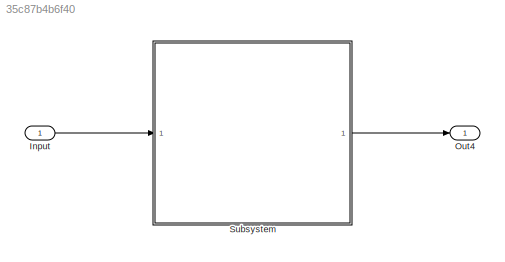
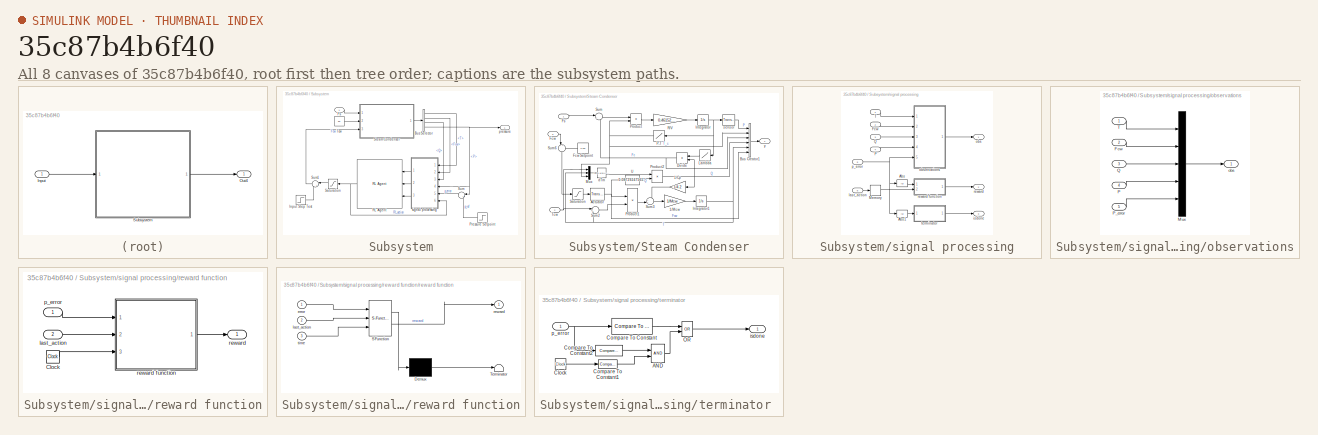
[diagram: thumbnail index - all 8 canvases of the model, root first then tree order]
MODEL slx_35c87b4b6f40
KIND model
CONFIG AbsTol = auto
CONFIG EnableMultiTasking = on
CONFIG FixedStep = Ts
CONFIG MaxStep = 0.1
CONFIG MinStep = auto
CONFIG PreLoadFcn = K=10.8;\nTI=2.56;\nTD=0;\nu=0;
CONFIG RelTol = 1e-3
CONFIG SampleTimeConstraint = Unconstrained
CONFIG SolverName = FixedStepAuto
CONFIG StartTime = 0.0
CONFIG StopTime = T
BLOCK [Inport] Input
BLOCK [Outport] Out4
BLOCK [SubSystem] Subsystem
  Ports = [1, 1]
  RequestExecContextInheritance = off
BLOCK [BusSelector] Subsystem/Bus Selector
  OutputSignals = T,Fcw,Q,P
  Ports = [1, 4]
BLOCK [Inport] Subsystem/Fs
BLOCK [Step] Subsystem/Input Step Test
  After = 0
  SampleTime = 0
  Time = 10
BLOCK [Step] Subsystem/Pressure Setpoint
  After = P_final
  Before = P_init
  SampleTime = 0
  Time = P_step
BLOCK [Reference] Subsystem/RL Agent  REF=rllib/RL Agent
  Ports = [3, 1]
  SourceBlock = rllib/RL Agent
  SourceProductBaseCode = RL
  SourceType = RL Agent
BLOCK [Saturate] Subsystem/Saturation
  LowerLimit = -1200
  UpperLimit = 500
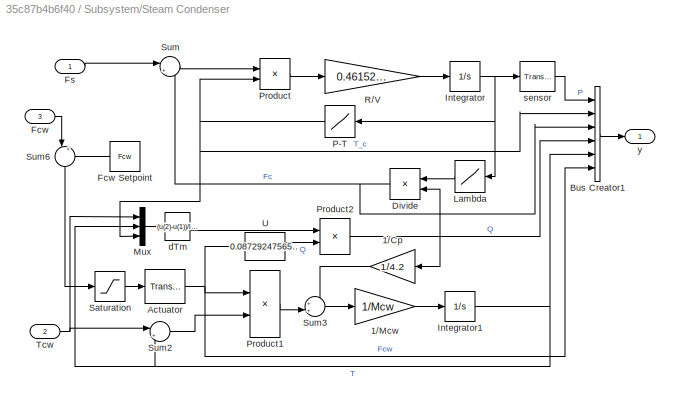
BLOCK [SubSystem] Subsystem/Steam Condenser
  Ports = [3, 1]
  RequestExecContextInheritance = off
BLOCK [Gain] Subsystem/Steam Condenser/1//Cp
  Gain = 1/4.2
  OutDataTypeStr = Inherit: Same as input
  ParamDataTypeStr = Inherit: Same as input
BLOCK [Gain] Subsystem/Steam Condenser/1//Mcw
  Gain = 1/Mcw
  OutDataTypeStr = Inherit: Same as input
  ParamDataTypeStr = Inherit: Same as input
BLOCK [Reference] Subsystem/Steam Condenser/Actuator  REF=simulink_extras/Additional
Linear/Transfer Fcn
(with initial outputs)
  Ports = [1, 1]
  SourceBlock = simulink_extras/Additional\nLinear/Transfer Fcn\n(with initial outputs)
  SourceProductBaseCode = SL
  SourceType = Transfer Function with Initial Outputs
BLOCK [BusCreator] Subsystem/Steam Condenser/Bus Creator1
  DisplayOption = bar
  InheritFromInputs = on
  Inputs = 6
  Ports = [6, 1]
BLOCK [Product] Subsystem/Steam Condenser/Divide
  InputSameDT = on
  Inputs = /*
  OutDataTypeStr = Inherit: Same as first input
  Ports = [2, 1]
  RndMeth = Zero
BLOCK [Inport] Subsystem/Steam Condenser/Fcw
  Port = 3
BLOCK [Constant] Subsystem/Steam Condenser/Fcw Setpoint
  Value = Fcw
BLOCK [Inport] Subsystem/Steam Condenser/Fs
BLOCK [Integrator] Subsystem/Steam Condenser/Integrator
  InitialCondition = P
  Ports = [1, 1]
BLOCK [Integrator] Subsystem/Steam Condenser/Integrator1
  InitialCondition = T
  Ports = [1, 1]
BLOCK [Lookup] Subsystem/Steam Condenser/Lambda
  InputValues = [50 60 70 80 90 100 110]
  Table = [2305.42 2293.64 2283.30 2274.05 2265.65 2257.92 2250.76]
BLOCK [Mux] Subsystem/Steam Condenser/Mux
  DisplayOption = bar
  Inputs = 3
  Ports = [3, 1]
BLOCK [Lookup] Subsystem/Steam Condenser/P-T
  InputValues = [50 60 70 80 90 100 110]
  Table = [81.3167 85.9258 89.9315 93.4854 96.6870 99.6059 102.2923]
BLOCK [Product] Subsystem/Steam Condenser/Product
  InputSameDT = on
  OutDataTypeStr = Inherit: Same as first input
  Ports = [2, 1]
  RndMeth = Zero
BLOCK [Product] Subsystem/Steam Condenser/Product1
  InputSameDT = on
  OutDataTypeStr = Inherit: Same as first input
  Ports = [2, 1]
  RndMeth = Zero
BLOCK [Product] Subsystem/Steam Condenser/Product2
  InputSameDT = on
  Inputs = */
  OutDataTypeStr = Inherit: Same as first input
  Ports = [2, 1]
  RndMeth = Zero
BLOCK [Gain] Subsystem/Steam Condenser/R//V
  Gain = 0.461526/V
  OutDataTypeStr = Inherit: Same as input
  ParamDataTypeStr = Inherit: Same as input
BLOCK [Saturate] Subsystem/Steam Condenser/Saturation
  LowerLimit = 0
  UpperLimit = 200
BLOCK [Sum] Subsystem/Steam Condenser/Sum
  InputSameDT = on
  Inputs = |+-
  OutDataTypeStr = Inherit: Same as first input
  Ports = [2, 1]
BLOCK [Sum] Subsystem/Steam Condenser/Sum2
  InputSameDT = on
  Inputs = |+-
  OutDataTypeStr = Inherit: Same as first input
  Ports = [2, 1]
BLOCK [Sum] Subsystem/Steam Condenser/Sum3
  InputSameDT = on
  Inputs = ++|
  OutDataTypeStr = Inherit: Same as first input
  Ports = [2, 1]
BLOCK [Sum] Subsystem/Steam Condenser/Sum6
  InputSameDT = on
  Inputs = |++
  NameLocation = left
  OutDataTypeStr = Inherit: Same as first input
  Ports = [2, 1]
BLOCK [Inport] Subsystem/Steam Condenser/Tcw
  Port = 2
BLOCK [Fcn] Subsystem/Steam Condenser/U
  Expr = 0.0872924756541668/u^0.8+0.00073786772008033
BLOCK [Fcn] Subsystem/Steam Condenser/dTm
  Expr = (u(2)-u(1))/log((u(3)-u(1))/(u(3)-u(2)))
BLOCK [Reference] Subsystem/Steam Condenser/sensor  REF=simulink_extras/Additional
Linear/Transfer Fcn
(with initial outputs)
  Ports = [1, 1]
  SourceBlock = simulink_extras/Additional\nLinear/Transfer Fcn\n(with initial outputs)
  SourceProductBaseCode = SL
  SourceType = Transfer Function with Initial Outputs
BLOCK [Outport] Subsystem/Steam Condenser/y
BLOCK [Sum] Subsystem/Sum
  InputSameDT = on
  Inputs = |+-
  OutDataTypeStr = Inherit: Same as first input
  Ports = [2, 1]
BLOCK [Sum] Subsystem/Sum1
  InputSameDT = on
  Inputs = |++
  OutDataTypeStr = Inherit: Same as first input
  Ports = [2, 1]
BLOCK [Constant] Subsystem/Tcw
  Value = 60
  VectorParams1D = off
BLOCK [Outport] Subsystem/pressure
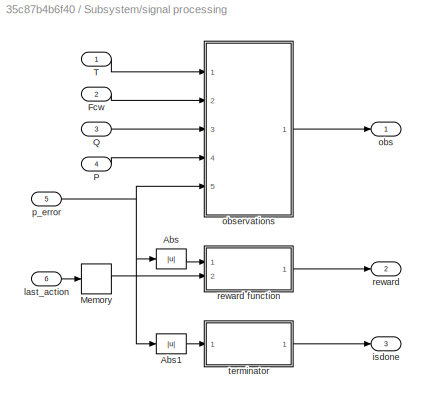
BLOCK [SubSystem] Subsystem/signal processing
  Ports = [6, 3]
  RequestExecContextInheritance = off
BLOCK [Abs] Subsystem/signal processing/Abs
  SaturateOnIntegerOverflow = off
BLOCK [Abs] Subsystem/signal processing/Abs1
  SaturateOnIntegerOverflow = off
BLOCK [Inport] Subsystem/signal processing/Fcw
  Port = 2
BLOCK [Memory] Subsystem/signal processing/Memory
BLOCK [Inport] Subsystem/signal processing/P
  Port = 4
BLOCK [Inport] Subsystem/signal processing/Q
  Port = 3
BLOCK [Inport] Subsystem/signal processing/T
BLOCK [Outport] Subsystem/signal processing/isdone
  Port = 3
BLOCK [Inport] Subsystem/signal processing/last_action
  Port = 6
BLOCK [Outport] Subsystem/signal processing/obs
BLOCK [SubSystem] Subsystem/signal processing/observations
  Ports = [5, 1]
  RequestExecContextInheritance = off
BLOCK [Inport] Subsystem/signal processing/observations/Fcw
  Port = 2
BLOCK [Mux] Subsystem/signal processing/observations/Mux
  DisplayOption = bar
  Inputs = 5
  Ports = [5, 1]
BLOCK [Inport] Subsystem/signal processing/observations/P
  Port = 4
BLOCK [Inport] Subsystem/signal processing/observations/P_error
  Port = 5
BLOCK [Inport] Subsystem/signal processing/observations/Q
  Port = 3
BLOCK [Inport] Subsystem/signal processing/observations/T
BLOCK [Outport] Subsystem/signal processing/observations/obs
BLOCK [Inport] Subsystem/signal processing/p_error
  Port = 5
BLOCK [Outport] Subsystem/signal processing/reward
  Port = 2
BLOCK [SubSystem] Subsystem/signal processing/reward function
  Ports = [2, 1]
  RequestExecContextInheritance = off
BLOCK [Clock] Subsystem/signal processing/reward function/Clock
BLOCK [Inport] Subsystem/signal processing/reward function/last_action
  Port = 2
BLOCK [Inport] Subsystem/signal processing/reward function/p_error
BLOCK [Outport] Subsystem/signal processing/reward function/reward
BLOCK [SubSystem] Subsystem/signal processing/reward function/reward function
  ErrorFcn = Stateflow.Translate.translate
  PermitHierarchicalResolution = ExplicitOnly
  Ports = [3, 1]
  RequestExecContextInheritance = off
  SFBlockType = MATLAB Function
  TreatAsAtomicUnit = on
BLOCK [Demux] Subsystem/signal processing/reward function/reward function/ Demux 
  Outputs = 1
  Ports = [1, 1]
BLOCK [S-Function] Subsystem/signal processing/reward function/reward function/ SFunction 
  EnableBusSupport = on
  FunctionName = sf_sfun
  PortCounts = [3 2]
  Ports = [3, 2]
  SFcnIsStateOwnerBlock = off
  SFunctionDeploymentMode = off
  Tag = Stateflow S-Function 2
BLOCK [Terminator] Subsystem/signal processing/reward function/reward function/ Terminator 
BLOCK [Inport] Subsystem/signal processing/reward function/reward function/error
BLOCK [Inport] Subsystem/signal processing/reward function/reward function/last_action
  Port = 2
BLOCK [Outport] Subsystem/signal processing/reward function/reward function/reward
BLOCK [Inport] Subsystem/signal processing/reward function/reward function/time
  Port = 3
BLOCK [SubSystem] Subsystem/signal processing/terminator 
  Ports = [1, 1]
  RequestExecContextInheritance = off
BLOCK [Logic] Subsystem/signal processing/terminator /AND
  AllPortsSameDT = off
  IconShape = distinctive
  OutDataTypeStr = boolean
  Ports = [2, 1]
BLOCK [Clock] Subsystem/signal processing/terminator /Clock
BLOCK [Reference] Subsystem/signal processing/terminator /Compare To Constant  REF=simulink/Logic and Bit
Operations/Compare
To Constant
  Ports = [1, 1]
  SourceBlock = simulink/Logic and Bit\nOperations/Compare\nTo Constant
  SourceProductBaseCode = SL
  SourceType = Compare To Constant
BLOCK [Reference] Subsystem/signal processing/terminator /Compare To Constant1  REF=simulink/Logic and Bit
Operations/Compare
To Constant
  Ports = [1, 1]
  SourceBlock = simulink/Logic and Bit\nOperations/Compare\nTo Constant
  SourceProductBaseCode = SL
  SourceType = Compare To Constant
BLOCK [Reference] Subsystem/signal processing/terminator /Compare To Constant2  REF=simulink/Logic and Bit
Operations/Compare
To Constant
  Ports = [1, 1]
  SourceBlock = simulink/Logic and Bit\nOperations/Compare\nTo Constant
  SourceProductBaseCode = SL
  SourceType = Compare To Constant
BLOCK [Logic] Subsystem/signal processing/terminator /OR
  AllPortsSameDT = off
  IconShape = distinctive
  Operator = OR
  OutDataTypeStr = boolean
  Ports = [2, 1]
BLOCK [Outport] Subsystem/signal processing/terminator /isdone
BLOCK [Inport] Subsystem/signal processing/terminator /p_error
LINE Input:1 -> Subsystem:1
LINE Subsystem/Bus Selector:1 -> Subsystem/signal processing:1
LINE Subsystem/Bus Selector:2 -> Subsystem/signal processing:2
LINE Subsystem/Bus Selector:3 -> Subsystem/signal processing:3
NET Subsystem/Bus Selector:4 -> Subsystem/Sum:1, Subsystem/pressure:1, Subsystem/signal processing:4
LINE Subsystem/Fs:1 -> Subsystem/Steam Condenser:1
LINE Subsystem/Input Step Test:1 -> Subsystem/Sum1:2
LINE Subsystem/Pressure Setpoint:1 -> Subsystem/Sum:2
NET Subsystem/RL Agent:1 -> Subsystem/Saturation:1, Subsystem/signal processing:6
LINE Subsystem/Saturation:1 -> Subsystem/Sum1:1
LINE Subsystem/Steam Condenser/1//Cp:1 -> Subsystem/Steam Condenser/Sum3:1
LINE Subsystem/Steam Condenser/1//Mcw:1 -> Subsystem/Steam Condenser/Integrator1:1
NET Subsystem/Steam Condenser/Actuator:1 -> Subsystem/Steam Condenser/Bus Creator1:6, Subsystem/Steam Condenser/Product1:1, Subsystem/Steam Condenser/U:1
LINE Subsystem/Steam Condenser/Bus Creator1:1 -> Subsystem/Steam Condenser/y:1
NET Subsystem/Steam Condenser/Divide:1 -> Subsystem/Steam Condenser/Bus Creator1:3, Subsystem/Steam Condenser/Sum:2
LINE Subsystem/Steam Condenser/Fcw Setpoint:1 -> Subsystem/Steam Condenser/Sum6:2
LINE Subsystem/Steam Condenser/Fcw:1 -> Subsystem/Steam Condenser/Sum6:1
LINE Subsystem/Steam Condenser/Fs:1 -> Subsystem/Steam Condenser/Sum:1
NET Subsystem/Steam Condenser/Integrator1:1 -> Subsystem/Steam Condenser/Bus Creator1:5, Subsystem/Steam Condenser/Mux:2, Subsystem/Steam Condenser/Sum2:2
NET Subsystem/Steam Condenser/Integrator:1 -> Subsystem/Steam Condenser/Lambda:1, Subsystem/Steam Condenser/P-T:1, Subsystem/Steam Condenser/sensor:1
LINE Subsystem/Steam Condenser/Lambda:1 -> Subsystem/Steam Condenser/Divide:1
LINE Subsystem/Steam Condenser/Mux:1 -> Subsystem/Steam Condenser/dTm:1
NET Subsystem/Steam Condenser/P-T:1 -> Subsystem/Steam Condenser/Bus Creator1:2, Subsystem/Steam Condenser/Mux:3, Subsystem/Steam Condenser/Product:2
LINE Subsystem/Steam Condenser/Product1:1 -> Subsystem/Steam Condenser/Sum3:2
NET Subsystem/Steam Condenser/Product2:1 -> Subsystem/Steam Condenser/1//Cp:1, Subsystem/Steam Condenser/Bus Creator1:4, Subsystem/Steam Condenser/Divide:2
LINE Subsystem/Steam Condenser/Product:1 -> Subsystem/Steam Condenser/R//V:1
LINE Subsystem/Steam Condenser/R//V:1 -> Subsystem/Steam Condenser/Integrator:1
LINE Subsystem/Steam Condenser/Saturation:1 -> Subsystem/Steam Condenser/Actuator:1
LINE Subsystem/Steam Condenser/Sum2:1 -> Subsystem/Steam Condenser/Product1:2
LINE Subsystem/Steam Condenser/Sum3:1 -> Subsystem/Steam Condenser/1//Mcw:1
LINE Subsystem/Steam Condenser/Sum6:1 -> Subsystem/Steam Condenser/Saturation:1
LINE Subsystem/Steam Condenser/Sum:1 -> Subsystem/Steam Condenser/Product:1
NET Subsystem/Steam Condenser/Tcw:1 -> Subsystem/Steam Condenser/Mux:1, Subsystem/Steam Condenser/Sum2:1
LINE Subsystem/Steam Condenser/U:1 -> Subsystem/Steam Condenser/Product2:2
LINE Subsystem/Steam Condenser/dTm:1 -> Subsystem/Steam Condenser/Product2:1
LINE Subsystem/Steam Condenser/sensor:1 -> Subsystem/Steam Condenser/Bus Creator1:1
LINE Subsystem/Steam Condenser:1 -> Subsystem/Bus Selector:1
LINE Subsystem/Sum1:1 -> Subsystem/Steam Condenser:3
LINE Subsystem/Sum:1 -> Subsystem/signal processing:5
LINE Subsystem/Tcw:1 -> Subsystem/Steam Condenser:2
LINE Subsystem/signal processing/Abs1:1 -> Subsystem/signal processing/terminator :1
LINE Subsystem/signal processing/Abs:1 -> Subsystem/signal processing/reward function:1
LINE Subsystem/signal processing/Fcw:1 -> Subsystem/signal processing/observations:2
LINE Subsystem/signal processing/Memory:1 -> Subsystem/signal processing/reward function:2
LINE Subsystem/signal processing/P:1 -> Subsystem/signal processing/observations:4
LINE Subsystem/signal processing/Q:1 -> Subsystem/signal processing/observations:3
LINE Subsystem/signal processing/T:1 -> Subsystem/signal processing/observations:1
LINE Subsystem/signal processing/last_action:1 -> Subsystem/signal processing/Memory:1
LINE Subsystem/signal processing/observations/Fcw:1 -> Subsystem/signal processing/observations/Mux:2
LINE Subsystem/signal processing/observations/Mux:1 -> Subsystem/signal processing/observations/obs:1
LINE Subsystem/signal processing/observations/P:1 -> Subsystem/signal processing/observations/Mux:4
LINE Subsystem/signal processing/observations/P_error:1 -> Subsystem/signal processing/observations/Mux:5
LINE Subsystem/signal processing/observations/Q:1 -> Subsystem/signal processing/observations/Mux:3
LINE Subsystem/signal processing/observations/T:1 -> Subsystem/signal processing/observations/Mux:1
LINE Subsystem/signal processing/observations:1 -> Subsystem/signal processing/obs:1
NET Subsystem/signal processing/p_error:1 -> Subsystem/signal processing/Abs1:1, Subsystem/signal processing/Abs:1, Subsystem/signal processing/observations:5
LINE Subsystem/signal processing/reward function/Clock:1 -> Subsystem/signal processing/reward function/reward function:3
LINE Subsystem/signal processing/reward function/last_action:1 -> Subsystem/signal processing/reward function/reward function:2
LINE Subsystem/signal processing/reward function/p_error:1 -> Subsystem/signal processing/reward function/reward function:1
LINE Subsystem/signal processing/reward function/reward function:1 -> Subsystem/signal processing/reward function/reward:1
LINE Subsystem/signal processing/reward function:1 -> Subsystem/signal processing/reward:1
LINE Subsystem/signal processing/terminator /AND:1 -> Subsystem/signal processing/terminator /OR:2
LINE Subsystem/signal processing/terminator /Clock:1 -> Subsystem/signal processing/terminator /Compare To Constant1:1
LINE Subsystem/signal processing/terminator /Compare To Constant1:1 -> Subsystem/signal processing/terminator /AND:2
LINE Subsystem/signal processing/terminator /Compare To Constant2:1 -> Subsystem/signal processing/terminator /AND:1
LINE Subsystem/signal processing/terminator /Compare To Constant:1 -> Subsystem/signal processing/terminator /OR:1
LINE Subsystem/signal processing/terminator /OR:1 -> Subsystem/signal processing/terminator /isdone:1
NET Subsystem/signal processing/terminator /p_error:1 -> Subsystem/signal processing/terminator /Compare To Constant2:1, Subsystem/signal processing/terminator /Compare To Constant:1
LINE Subsystem/signal processing/terminator :1 -> Subsystem/signal processing/isdone:1
LINE Subsystem/signal processing:1 -> Subsystem/RL Agent:1
LINE Subsystem/signal processing:2 -> Subsystem/RL Agent:2
LINE Subsystem/signal processing:3 -> Subsystem/RL Agent:3
LINE Subsystem:1 -> Out4:1
note: NET lines group one-source signal fan-out (src -> all destinations, sorted); 1:1 wires keep LINE
CHART Subsystem/signal processing/reward function/reward function states=1 transitions=1
  STATE_LABEL 'eML_blk_kernel()'
  STATE_LABEL 'SCRIPT:\nfunction reward = fcn(error, last_action, time)\n\n% if time < 20\n%     reward = -2*tanh(error/15) + 2*exp(-error/10);\n% else\n%     reward = -5*tanh(error) + 5*exp(-error*1.5);\n% end\n\n% if time < 15\n%     reward = -0.1*tanh(error/15) + 0.1*exp(-error/10);\n% elseif time < 20\n%     reward = -1*tanh(error/4) + 1*exp(-error/2);\n% else\n%         reward = -5*tanh(error) + 5*exp(-error);\n% end\n\nrew...<+19ch>'
CHART  states=0 transitions=0
